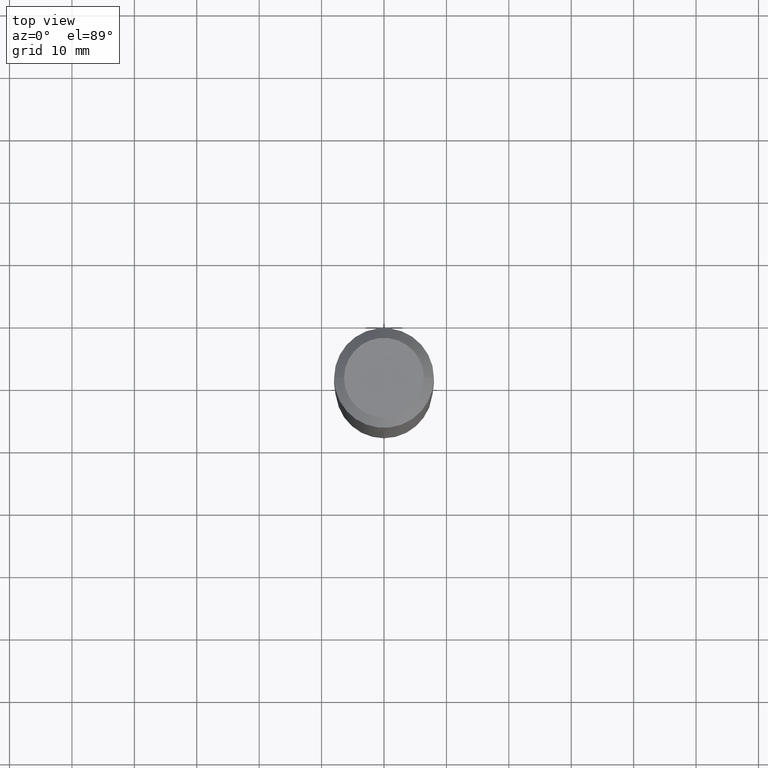
[diagram: clean part render]
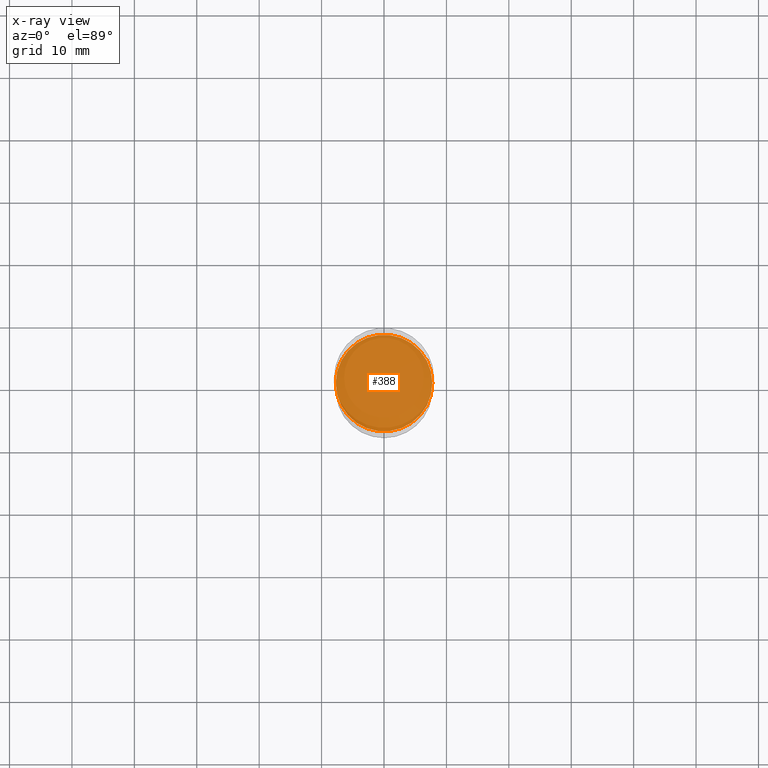
[diagram: x-ray — body ghosted, one internal face saturated and labeled with its STEP entity id]
A machine part, top view, then the same camera in x-ray: the body is ghosted and one INTERNAL B-rep face — a face not visible from any outside direction — is saturated and labeled: STEP entity #388.
In plain terms, the highlighted planar face has unit normal (-0, 0, 1).
Its self-contained STEP definition (entity closure, byte-faithful):
#25 = CARTESIAN_POINT ( 'NONE',  ( 4.813905344975440153E-29, -6.872981015512730130E-15, -1.968499999999999472 ) ) ;
#45 = CIRCLE ( 'NONE', #229, 0.3045999999999999819 ) ;
#52 = EDGE_CURVE ( 'NONE', #228, #440, #413, .T. ) ;
#64 = CARTESIAN_POINT ( 'NONE',  ( 0.3045999999999999819, -8.999991447135967386E-15, -1.968499999999999472 ) ) ;
#67 = AXIS2_PLACEMENT_3D ( 'NONE', #25, #488, #291 ) ;
#121 = DIRECTION ( 'NONE',  ( 1.000000000000000000, -6.982962677686267499E-15, 0.000000000000000000 ) ) ;
#127 = DIRECTION ( 'NONE',  ( -2.445468806185136597E-29, 3.491481338843145583E-15, 1.000000000000000000 ) ) ;
#161 = CARTESIAN_POINT ( 'NONE',  ( 4.813905344975440153E-29, -6.872981015512730130E-15, -1.968499999999999472 ) ) ;
#164 = EDGE_CURVE ( 'NONE', #440, #228, #45, .T. ) ;
#194 = DIRECTION ( 'NONE',  ( -2.445468806185136597E-29, 3.491481338843145583E-15, 1.000000000000000000 ) ) ;
#228 = VERTEX_POINT ( 'NONE', #364 ) ;
#229 = AXIS2_PLACEMENT_3D ( 'NONE', #356, #127, #121 ) ;
#291 = DIRECTION ( 'NONE',  ( 1.000000000000000000, -6.982962677686265922E-15, 4.876176775795935793E-29 ) ) ;
#300 = ORIENTED_EDGE ( 'NONE', *, *, #52, .F. ) ;
#327 = AXIS2_PLACEMENT_3D ( 'NONE', #161, #194, #360 ) ;
#356 = CARTESIAN_POINT ( 'NONE',  ( 4.813905344975440153E-29, -6.872981015512730130E-15, -1.968499999999999472 ) ) ;
#360 = DIRECTION ( 'NONE',  ( 1.000000000000000000, -6.982962677686267499E-15, 0.000000000000000000 ) ) ;
#364 = CARTESIAN_POINT ( 'NONE',  ( -0.3045999999999999819, -4.706018615213354680E-15, -1.968499999999999472 ) ) ;
#368 = EDGE_LOOP ( 'NONE', ( #421, #300 ) ) ;
#388 = ADVANCED_FACE ( 'NONE', ( #484 ), #414, .F. ) ;
#413 = CIRCLE ( 'NONE', #327, 0.3045999999999999819 ) ;
#414 = PLANE ( 'NONE',  #67 ) ;
#421 = ORIENTED_EDGE ( 'NONE', *, *, #164, .F. ) ;
#440 = VERTEX_POINT ( 'NONE', #64 ) ;
#484 = FACE_OUTER_BOUND ( 'NONE', #368, .T. ) ;
#488 = DIRECTION ( 'NONE',  ( -2.438088387897960049E-29, 3.491481338843145188E-15, 1.000000000000000000 ) ) ;